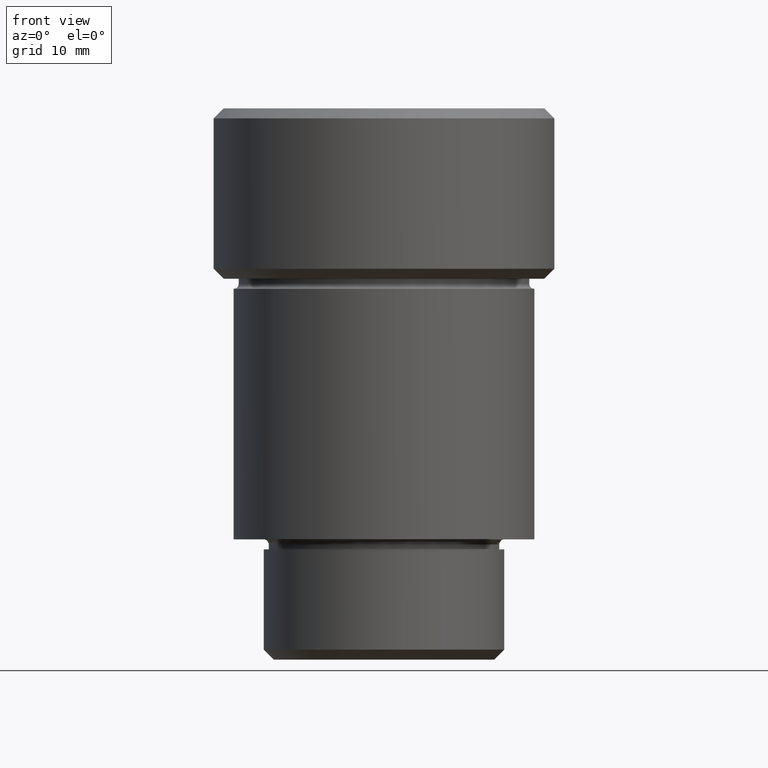
[diagram: clean part render]
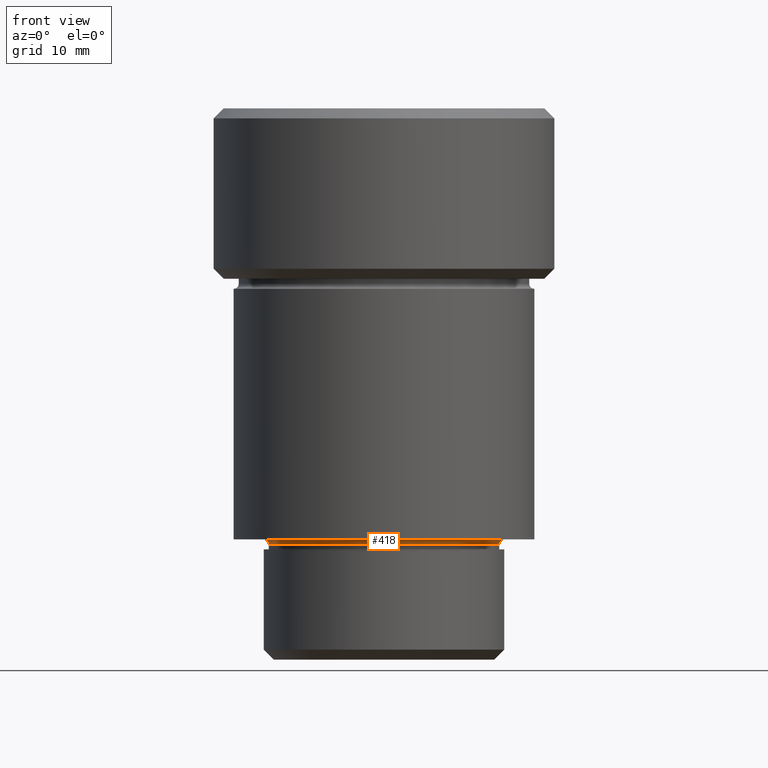
[diagram: same view with one face highlighted and labeled with its STEP entity id]
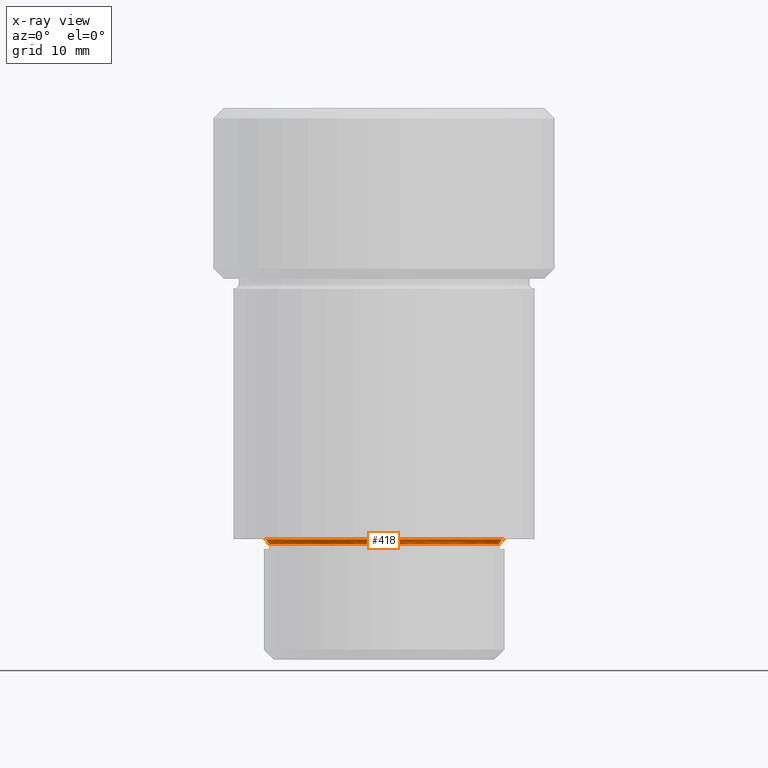
[diagram: x-ray of the same camera — body ghosted, the highlighted face saturated]
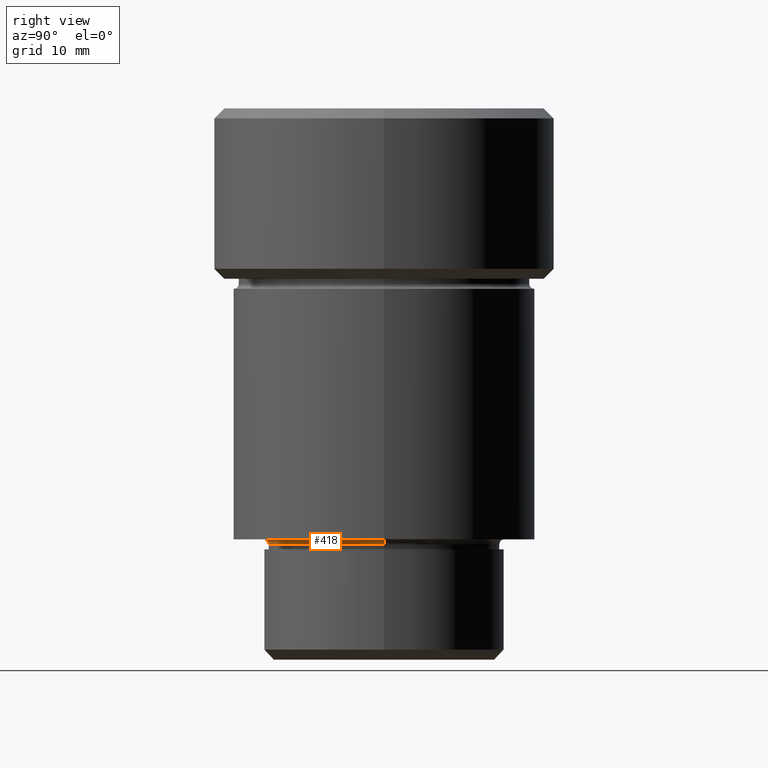
[diagram: same view with one face highlighted and labeled with its STEP entity id]
A machine part, front view. The second image highlights one B-rep face of the part: STEP entity #418.
The next image is the same camera in x-ray: the body ghosted, the highlighted face saturated — about 0% of this face is hidden behind the body in this view.
A second angle (right view) of the same face is appended — the face is thin or edge-on in the first view.
In plain terms, the highlighted toroidal blend (fillet) surface has major radius 12 mm and minor (blend) radius 0.5 mm.
Its self-contained STEP definition (entity closure, byte-faithful):
#10 = CARTESIAN_POINT ( 'NONE',  ( -12.00000000000000000, 0.000000000000000000, -43.00000000000000000 ) ) ;
#31 = EDGE_CURVE ( 'NONE', #553, #53, #467, .T. ) ;
#38 = AXIS2_PLACEMENT_3D ( 'NONE', #307, #260, #692 ) ;
#53 = VERTEX_POINT ( 'NONE', #557 ) ;
#57 = CARTESIAN_POINT ( 'NONE',  ( -12.00000000000000000, 0.000000000000000000, -43.50000000000000000 ) ) ;
#61 = DIRECTION ( 'NONE',  ( -0.000000000000000000, -1.000000000000000000, -0.000000000000000000 ) ) ;
#76 = CARTESIAN_POINT ( 'NONE',  ( 0.000000000000000000, 0.000000000000000000, -43.50000000000000000 ) ) ;
#128 = EDGE_CURVE ( 'NONE', #553, #298, #551, .T. ) ;
#162 = DIRECTION ( 'NONE',  ( 0.000000000000000000, 0.000000000000000000, -1.000000000000000000 ) ) ;
#163 = DIRECTION ( 'NONE',  ( -1.000000000000000000, 0.000000000000000000, 0.000000000000000000 ) ) ;
#186 = DIRECTION ( 'NONE',  ( -1.224646799147353207E-16, 1.000000000000000000, 0.000000000000000000 ) ) ;
#212 = ORIENTED_EDGE ( 'NONE', *, *, #128, .F. ) ;
#216 = VERTEX_POINT ( 'NONE', #10 ) ;
#219 = AXIS2_PLACEMENT_3D ( 'NONE', #535, #393, #540 ) ;
#220 = TOROIDAL_SURFACE ( 'NONE', #615, 12.00000000000000000, 0.5000000000000000000 ) ;
#260 = DIRECTION ( 'NONE',  ( -0.000000000000000000, -0.000000000000000000, 1.000000000000000000 ) ) ;
#285 = ORIENTED_EDGE ( 'NONE', *, *, #31, .T. ) ;
#298 = VERTEX_POINT ( 'NONE', #740 ) ;
#307 = CARTESIAN_POINT ( 'NONE',  ( 0.000000000000000000, 0.000000000000000000, -43.00000000000000000 ) ) ;
#312 = DIRECTION ( 'NONE',  ( 0.000000000000000000, 0.000000000000000000, -1.000000000000000000 ) ) ;
#317 = AXIS2_PLACEMENT_3D ( 'NONE', #741, #186, #728 ) ;
#387 = EDGE_CURVE ( 'NONE', #216, #53, #579, .T. ) ;
#393 = DIRECTION ( 'NONE',  ( 0.000000000000000000, 0.000000000000000000, -1.000000000000000000 ) ) ;
#418 = ADVANCED_FACE ( 'NONE', ( #628 ), #220, .F. ) ;
#467 = CIRCLE ( 'NONE', #317, 0.5000000000000004441 ) ;
#481 = EDGE_LOOP ( 'NONE', ( #212, #285, #620, #738 ) ) ;
#525 = AXIS2_PLACEMENT_3D ( 'NONE', #57, #61, #162 ) ;
#535 = CARTESIAN_POINT ( 'NONE',  ( 0.000000000000000000, 0.000000000000000000, -43.50000000000000000 ) ) ;
#540 = DIRECTION ( 'NONE',  ( -1.000000000000000000, 0.000000000000000000, 0.000000000000000000 ) ) ;
#551 = CIRCLE ( 'NONE', #219, 11.50000000000000000 ) ;
#553 = VERTEX_POINT ( 'NONE', #574 ) ;
#557 = CARTESIAN_POINT ( 'NONE',  ( 12.00000000000000000, 1.469576158976823947E-15, -43.00000000000000000 ) ) ;
#574 = CARTESIAN_POINT ( 'NONE',  ( 11.50000000000000000, 0.000000000000000000, -43.50000000000000000 ) ) ;
#579 = CIRCLE ( 'NONE', #38, 12.00000000000000000 ) ;
#580 = CIRCLE ( 'NONE', #525, 0.5000000000000004441 ) ;
#615 = AXIS2_PLACEMENT_3D ( 'NONE', #76, #312, #163 ) ;
#620 = ORIENTED_EDGE ( 'NONE', *, *, #387, .F. ) ;
#628 = FACE_OUTER_BOUND ( 'NONE', #481, .T. ) ;
#685 = EDGE_CURVE ( 'NONE', #298, #216, #580, .T. ) ;
#692 = DIRECTION ( 'NONE',  ( -1.000000000000000000, 0.000000000000000000, 0.000000000000000000 ) ) ;
#728 = DIRECTION ( 'NONE',  ( -1.000000000000000000, -1.224646799147353454E-16, 0.000000000000000000 ) ) ;
#738 = ORIENTED_EDGE ( 'NONE', *, *, #685, .F. ) ;
#740 = CARTESIAN_POINT ( 'NONE',  ( -11.50000000000000000, 1.408343819019456176E-15, -43.50000000000000000 ) ) ;
#741 = CARTESIAN_POINT ( 'NONE',  ( 12.00000000000000000, 1.469576158976823947E-15, -43.50000000000000000 ) ) ;